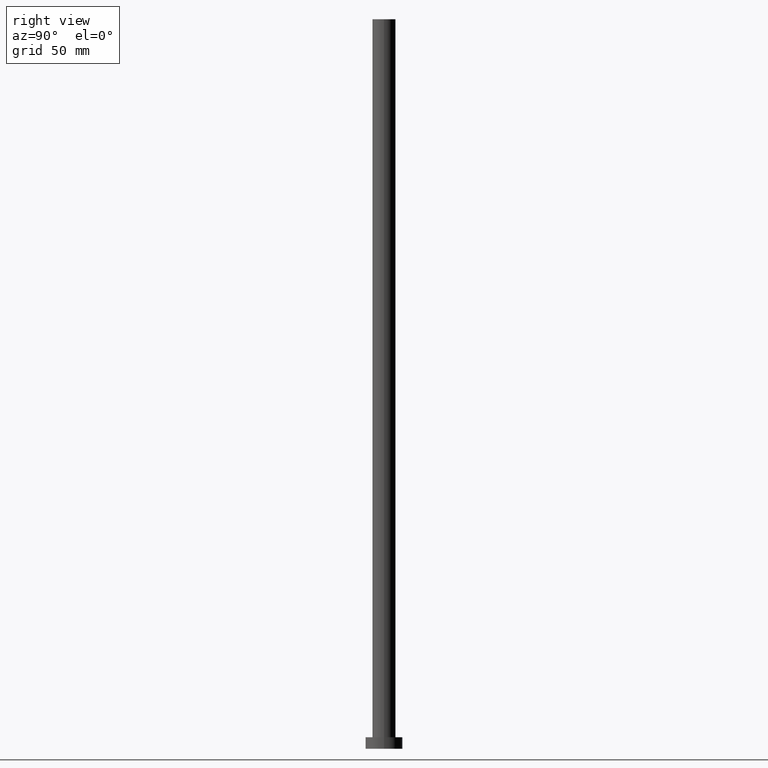
[diagram: clean part render]
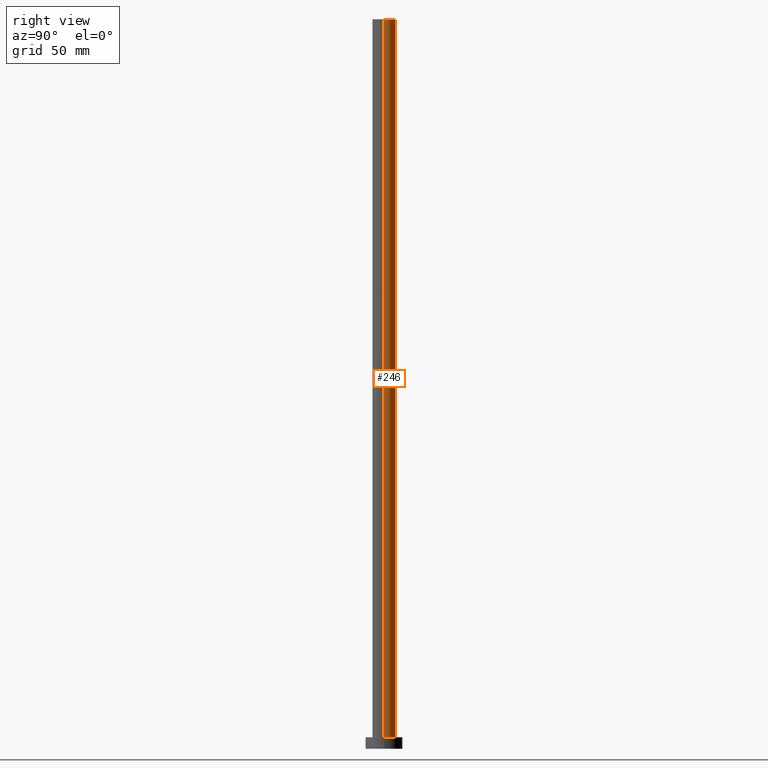
[diagram: same view with one face highlighted and labeled with its STEP entity id]
A machine part, right view. The second image highlights one B-rep face of the part: STEP entity #246.
In plain terms, the highlighted cylindrical surface (edge-blend (fillet) strip) has radius 5 mm, axis along (-0, -0, -1).
Its self-contained STEP definition (entity closure, byte-faithful):
#4 = VECTOR ( 'NONE', #229, 1000.000000000000000 ) ;
#12 = ORIENTED_EDGE ( 'NONE', *, *, #136, .F. ) ;
#15 = CARTESIAN_POINT ( 'NONE',  ( 0.000000000000000000, 0.000000000000000000, 5.000000000000000000 ) ) ;
#28 = EDGE_CURVE ( 'NONE', #187, #115, #42, .T. ) ;
#38 = VECTOR ( 'NONE', #186, 1000.000000000000000 ) ;
#42 = LINE ( 'NONE', #61, #4 ) ;
#43 = CARTESIAN_POINT ( 'NONE',  ( 5.000000000000000000, 6.123233995736766282E-16, 5.000000000000000000 ) ) ;
#45 = ORIENTED_EDGE ( 'NONE', *, *, #28, .T. ) ;
#47 = CARTESIAN_POINT ( 'NONE',  ( -5.000000000000000000, 0.000000000000000000, 315.0000000000000000 ) ) ;
#49 = ORIENTED_EDGE ( 'NONE', *, *, #53, .F. ) ;
#53 = EDGE_CURVE ( 'NONE', #187, #125, #194, .T. ) ;
#61 = CARTESIAN_POINT ( 'NONE',  ( 5.000000000000000000, 6.123233995736766282E-16, 315.0000000000000000 ) ) ;
#73 = AXIS2_PLACEMENT_3D ( 'NONE', #103, #134, #141 ) ;
#81 = AXIS2_PLACEMENT_3D ( 'NONE', #15, #223, #230 ) ;
#103 = CARTESIAN_POINT ( 'NONE',  ( 0.000000000000000000, 0.000000000000000000, 315.0000000000000000 ) ) ;
#104 = CARTESIAN_POINT ( 'NONE',  ( 5.000000000000000000, 6.123233995736766282E-16, 315.0000000000000000 ) ) ;
#105 = VERTEX_POINT ( 'NONE', #163 ) ;
#111 = ORIENTED_EDGE ( 'NONE', *, *, #127, .T. ) ;
#115 = VERTEX_POINT ( 'NONE', #43 ) ;
#119 = CARTESIAN_POINT ( 'NONE',  ( -5.000000000000000000, 0.000000000000000000, 315.0000000000000000 ) ) ;
#125 = VERTEX_POINT ( 'NONE', #119 ) ;
#127 = EDGE_CURVE ( 'NONE', #115, #105, #138, .T. ) ;
#129 = FACE_OUTER_BOUND ( 'NONE', #159, .T. ) ;
#134 = DIRECTION ( 'NONE',  ( 0.000000000000000000, 0.000000000000000000, 1.000000000000000000 ) ) ;
#136 = EDGE_CURVE ( 'NONE', #125, #105, #144, .T. ) ;
#138 = CIRCLE ( 'NONE', #81, 5.000000000000000000 ) ;
#141 = DIRECTION ( 'NONE',  ( 1.000000000000000000, 0.000000000000000000, 0.000000000000000000 ) ) ;
#144 = LINE ( 'NONE', #47, #38 ) ;
#159 = EDGE_LOOP ( 'NONE', ( #49, #45, #111, #12 ) ) ;
#163 = CARTESIAN_POINT ( 'NONE',  ( -5.000000000000000000, 0.000000000000000000, 5.000000000000000000 ) ) ;
#173 = CYLINDRICAL_SURFACE ( 'NONE', #211, 5.000000000000000000 ) ;
#177 = DIRECTION ( 'NONE',  ( -1.000000000000000000, 0.000000000000000000, 0.000000000000000000 ) ) ;
#186 = DIRECTION ( 'NONE',  ( -0.000000000000000000, -0.000000000000000000, -1.000000000000000000 ) ) ;
#187 = VERTEX_POINT ( 'NONE', #104 ) ;
#194 = CIRCLE ( 'NONE', #73, 5.000000000000000000 ) ;
#211 = AXIS2_PLACEMENT_3D ( 'NONE', #239, #220, #177 ) ;
#220 = DIRECTION ( 'NONE',  ( -0.000000000000000000, -0.000000000000000000, -1.000000000000000000 ) ) ;
#223 = DIRECTION ( 'NONE',  ( 0.000000000000000000, 0.000000000000000000, 1.000000000000000000 ) ) ;
#229 = DIRECTION ( 'NONE',  ( -0.000000000000000000, -0.000000000000000000, -1.000000000000000000 ) ) ;
#230 = DIRECTION ( 'NONE',  ( 1.000000000000000000, 0.000000000000000000, 0.000000000000000000 ) ) ;
#239 = CARTESIAN_POINT ( 'NONE',  ( 0.000000000000000000, 0.000000000000000000, 315.0000000000000000 ) ) ;
#246 = ADVANCED_FACE ( 'NONE', ( #129 ), #173, .T. ) ;